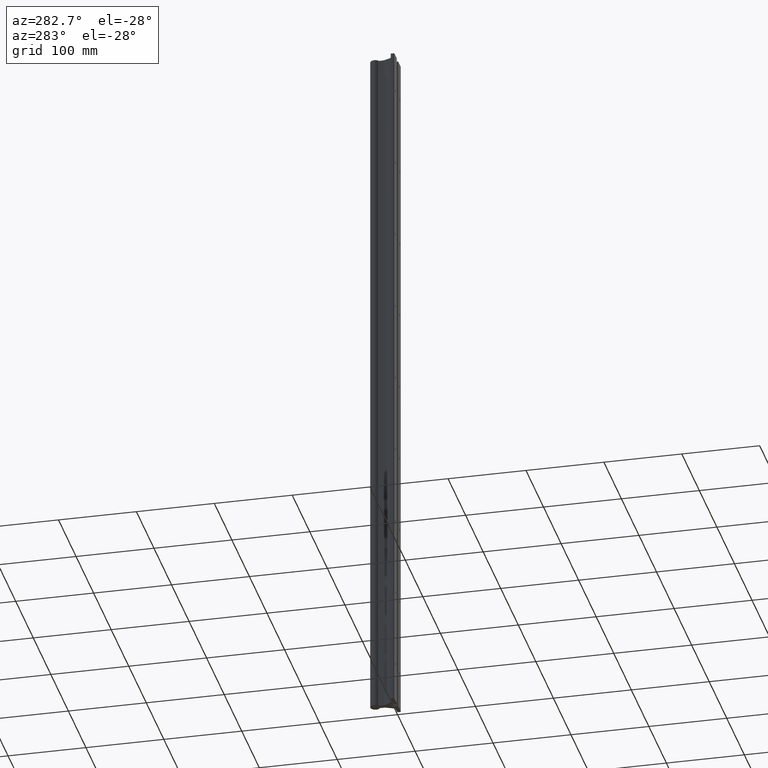
[diagram: clean part render]
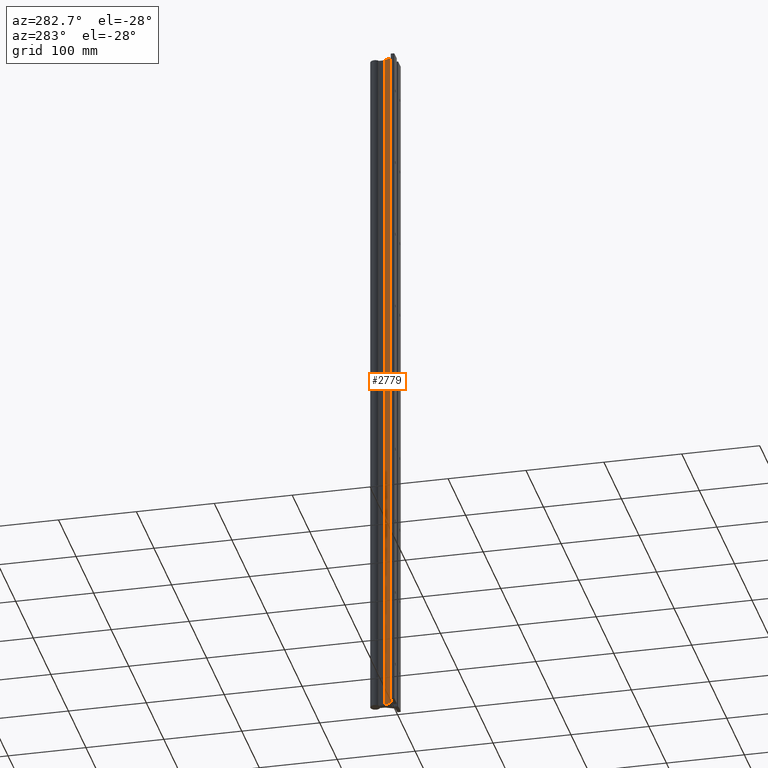
[diagram: same view with one face highlighted and labeled with its STEP entity id]
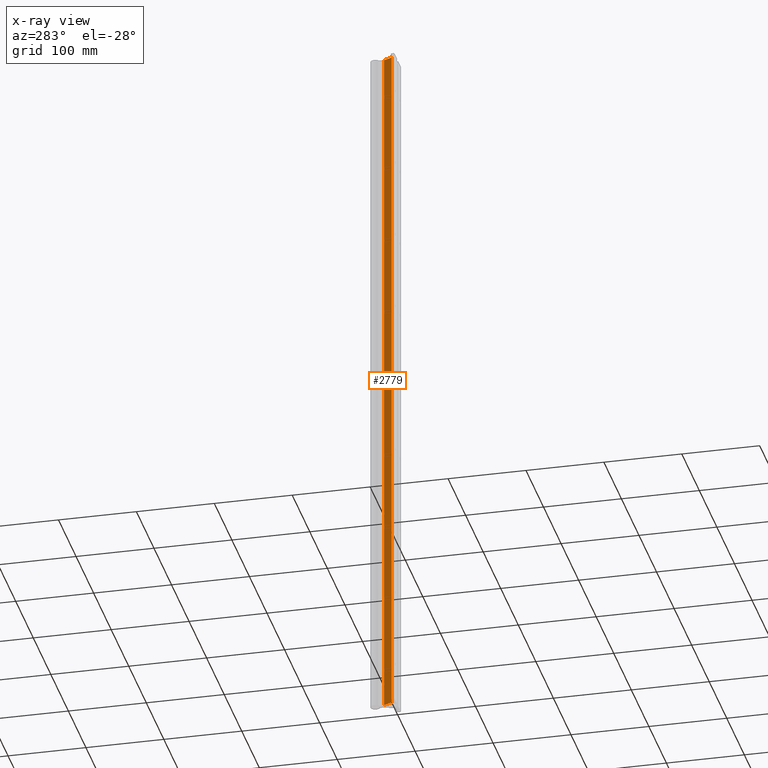
[diagram: x-ray of the same camera — body ghosted, the highlighted face saturated]
A machine part, auxiliary view. The second image highlights one B-rep face of the part: STEP entity #2779.
The next image is the same camera in x-ray: the body ghosted, the highlighted face saturated — about 0% of this face is hidden behind the body in this view.
In plain terms, the highlighted planar face has unit normal (-0.9063, 0.4226, 0).
Its self-contained STEP definition (entity closure, byte-faithful):
#604 = DIRECTION ( 'NONE',  ( 0.000000000000000000, 0.000000000000000000, 1.000000000000000000 ) ) ;
#668 = CARTESIAN_POINT ( 'NONE',  ( -0.3338457484000001974, 0.2221429042999998327, -36.00000000000000000 ) ) ;
#1090 = DIRECTION ( 'NONE',  ( -0.4226182616904512468, -0.9063077870600810826, 0.000000000000000000 ) ) ;
#1539 = VERTEX_POINT ( 'NONE', #668 ) ;
#1659 = EDGE_CURVE ( 'NONE', #6449, #6237, #8563, .T. ) ;
#1873 = CARTESIAN_POINT ( 'NONE',  ( -0.1358557632999980724, 0.6467337975999984945, -37.75252057657289129 ) ) ;
#2356 = LINE ( 'NONE', #10385, #10480 ) ;
#2493 = CARTESIAN_POINT ( 'NONE',  ( -0.1358557632999980447, 0.6467337975999984945, -37.75252057657289129 ) ) ;
#2498 = ORIENTED_EDGE ( 'NONE', *, *, #5227, .F. ) ;
#2728 = PLANE ( 'NONE',  #8672 ) ;
#2779 = ADVANCED_FACE ( 'NONE', ( #8270 ), #2728, .T. ) ;
#3014 = DIRECTION ( 'NONE',  ( -0.4226182616904512468, -0.9063077870600810826, 0.000000000000000000 ) ) ;
#3147 = CARTESIAN_POINT ( 'NONE',  ( -0.1358557632999980447, 0.6467337975999984945, 0.000000000000000000 ) ) ;
#4143 = ORIENTED_EDGE ( 'NONE', *, *, #5323, .T. ) ;
#4573 = EDGE_CURVE ( 'NONE', #7573, #6449, #11013, .T. ) ;
#4711 = ORIENTED_EDGE ( 'NONE', *, *, #1659, .F. ) ;
#5179 = LINE ( 'NONE', #7113, #9516 ) ;
#5227 = EDGE_CURVE ( 'NONE', #1539, #7573, #2356, .T. ) ;
#5323 = EDGE_CURVE ( 'NONE', #1539, #6237, #5179, .T. ) ;
#6237 = VERTEX_POINT ( 'NONE', #10713 ) ;
#6430 = DIRECTION ( 'NONE',  ( 0.000000000000000000, 0.000000000000000000, 1.000000000000000000 ) ) ;
#6449 = VERTEX_POINT ( 'NONE', #3147 ) ;
#6896 = CARTESIAN_POINT ( 'NONE',  ( -0.1358557632999980447, 0.6467337975999984945, -36.00000000000000000 ) ) ;
#7113 = CARTESIAN_POINT ( 'NONE',  ( -0.3338457484000001418, 0.2221429042999998049, -37.75252057657289129 ) ) ;
#7573 = VERTEX_POINT ( 'NONE', #6896 ) ;
#7897 = DIRECTION ( 'NONE',  ( 0.4226182616904512468, 0.9063077870600810826, -0.000000000000000000 ) ) ;
#8270 = FACE_OUTER_BOUND ( 'NONE', #11288, .T. ) ;
#8563 = LINE ( 'NONE', #10375, #10798 ) ;
#8672 = AXIS2_PLACEMENT_3D ( 'NONE', #1873, #11891, #1090 ) ;
#9499 = VECTOR ( 'NONE', #6430, 39.37007874015748143 ) ;
#9516 = VECTOR ( 'NONE', #604, 39.37007874015748143 ) ;
#10375 = CARTESIAN_POINT ( 'NONE',  ( -0.1358557632999980724, 0.6467337975999984945, 0.000000000000000000 ) ) ;
#10385 = CARTESIAN_POINT ( 'NONE',  ( -0.1358557632999980724, 0.6467337975999984945, -36.00000000000000000 ) ) ;
#10480 = VECTOR ( 'NONE', #7897, 39.37007874015748143 ) ;
#10713 = CARTESIAN_POINT ( 'NONE',  ( -0.3338457484000001418, 0.2221429042999998049, 0.000000000000000000 ) ) ;
#10798 = VECTOR ( 'NONE', #3014, 39.37007874015748143 ) ;
#11013 = LINE ( 'NONE', #2493, #9499 ) ;
#11109 = ORIENTED_EDGE ( 'NONE', *, *, #4573, .F. ) ;
#11288 = EDGE_LOOP ( 'NONE', ( #2498, #4143, #4711, #11109 ) ) ;
#11891 = DIRECTION ( 'NONE',  ( -0.9063077870600810826, 0.4226182616904512468, 0.000000000000000000 ) ) ;